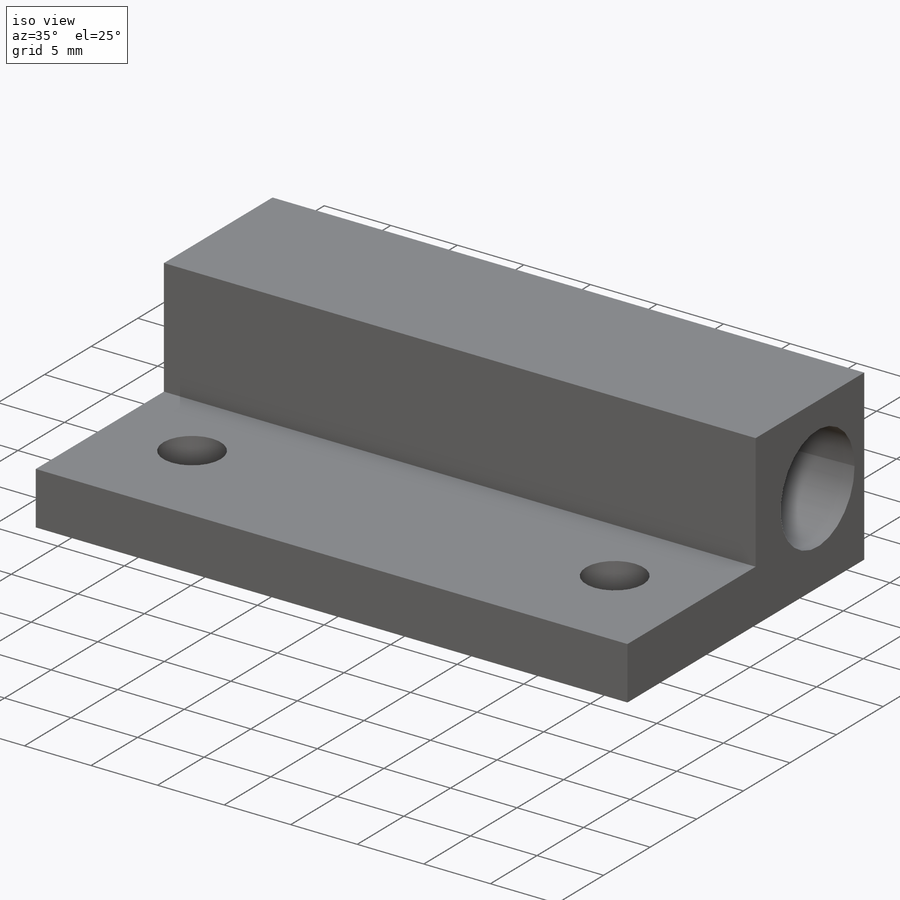
[diagram: iso view]
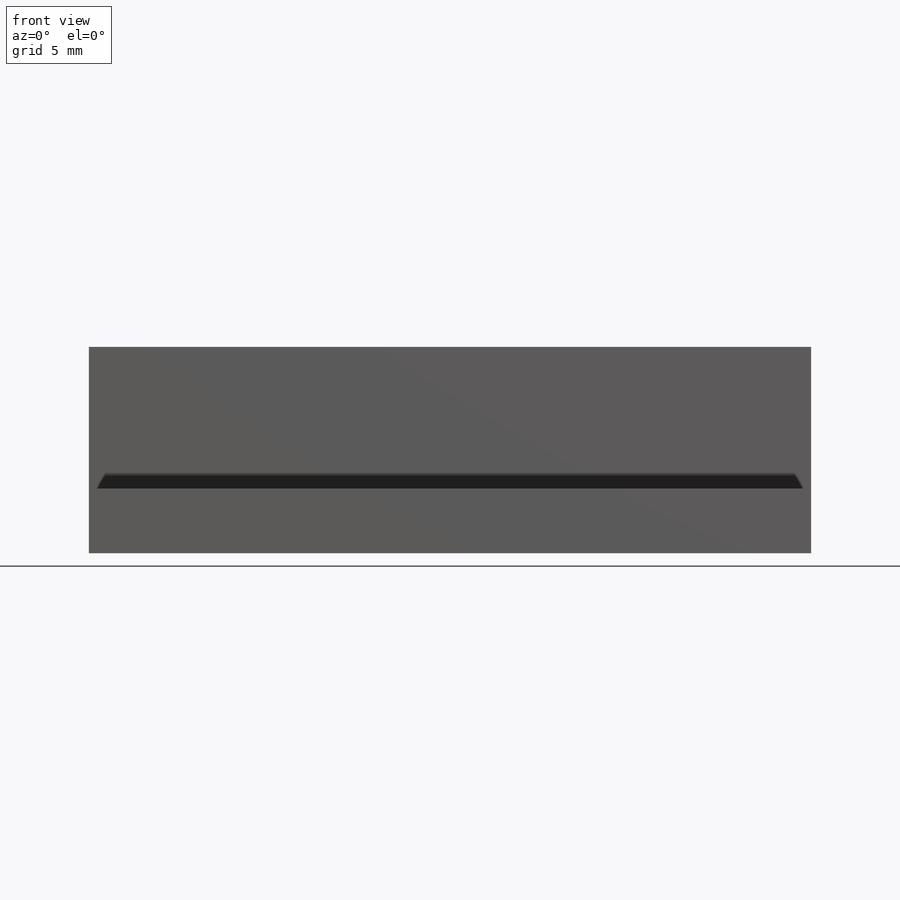
[diagram: front view]
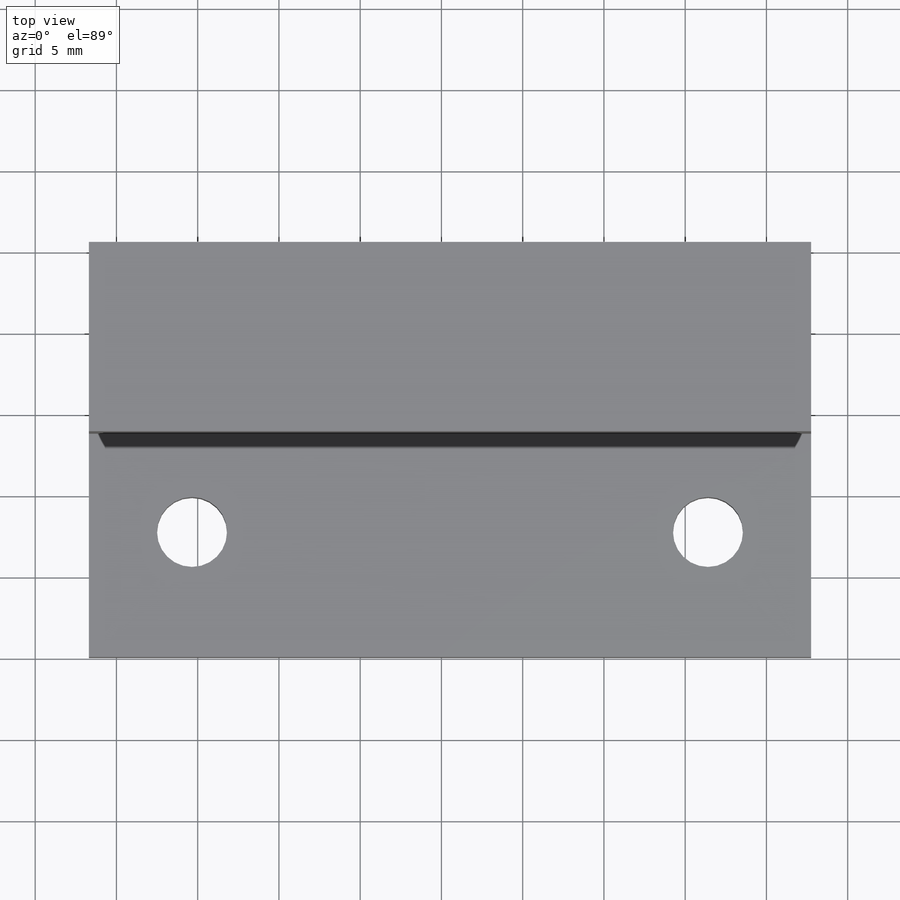
[diagram: top view]
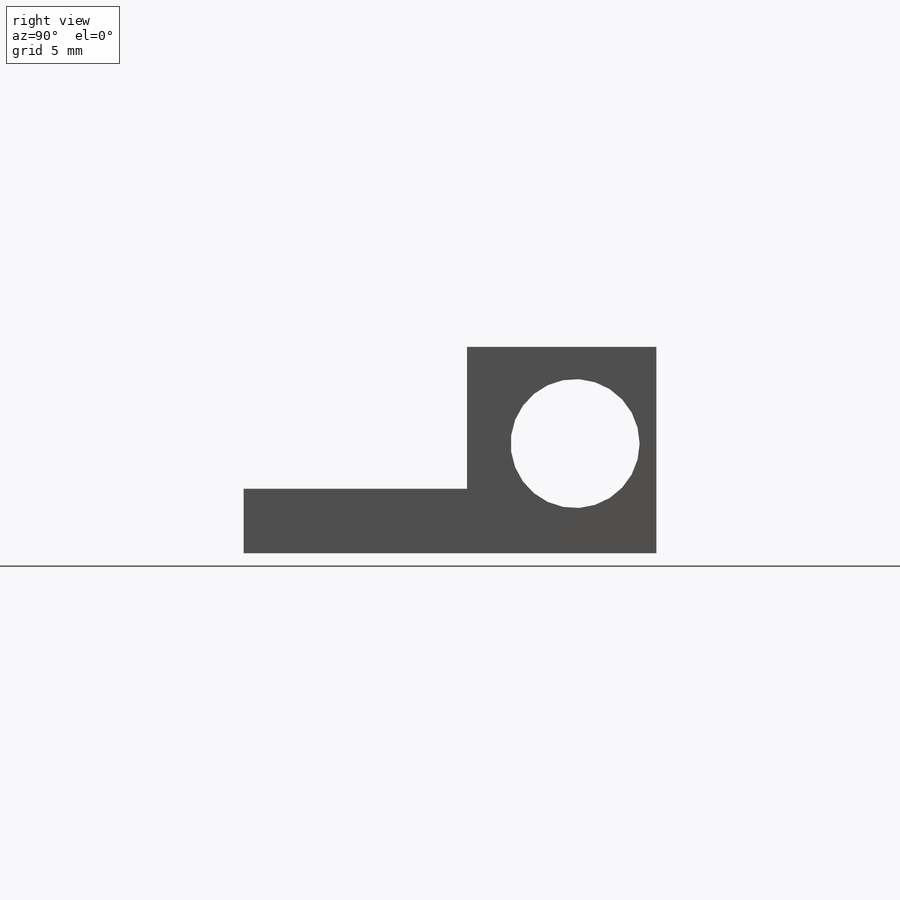
[diagram: right view]
SOLIDWORKS PART (.sldprt)
format: sldprt  version: not decoded by parser v0  size: 177,152 bytes
history: native  units: mm
features: sketch x5, cut_extrude x2, material x1, extrude x1, hole x1 + 1 further entry (+10 scaffold rows collapsed)
feature tree (21):
  scaffold x10  (default folders/planes/origin — collapsed)
  material  "Material <not specified>"
  "Annotations"  RD1=3.96875mm
  sketch  "Sketch1"  dims[D1=25.4mm D2=44.45mm]
  extrude  "Boss-Extrude1"  Depth=12.7mm
  sketch  "Sketch2"  dims[c1.D1=7.9375mm c1.D2=7.9375mm c1.D4=7.9375mm c2.D2=~6.746875mm c2.D3=~20.402933mm c2.D4=~20.402933mm c3.D3=~20.399072mm]
  cut_extrude  "Cut-Extrude1"  [1 undecoded]
  hole  "#18 (0.1695) Diameter Hole1"  Diameter=4.3053mm Depth=12.7mm
  sketch  "Sketch4"  dims[D1=~7.699072mm D2=31.75mm D3=6.35mm D4=~7.699072mm]
  sketch  "Sketch3"  dims[hole-wizard template sketch: 60 standard entries collapsed; hole parameters kept: c18.Thru Hole Depth=12.7mm]
  sketch  "Sketch5"
  cut_extrude  "Cut-Extrude2"  Depth=8.73125mm
decode coverage: 7 of 9 modeling features carry decoded parameters; 1 rows unclassified (native names shown)
note: ~ marks probable driven/reference dimensions
note: 1 parameter value undecoded
note: suppression state not decoded; provenance and decode notes live in map.json
